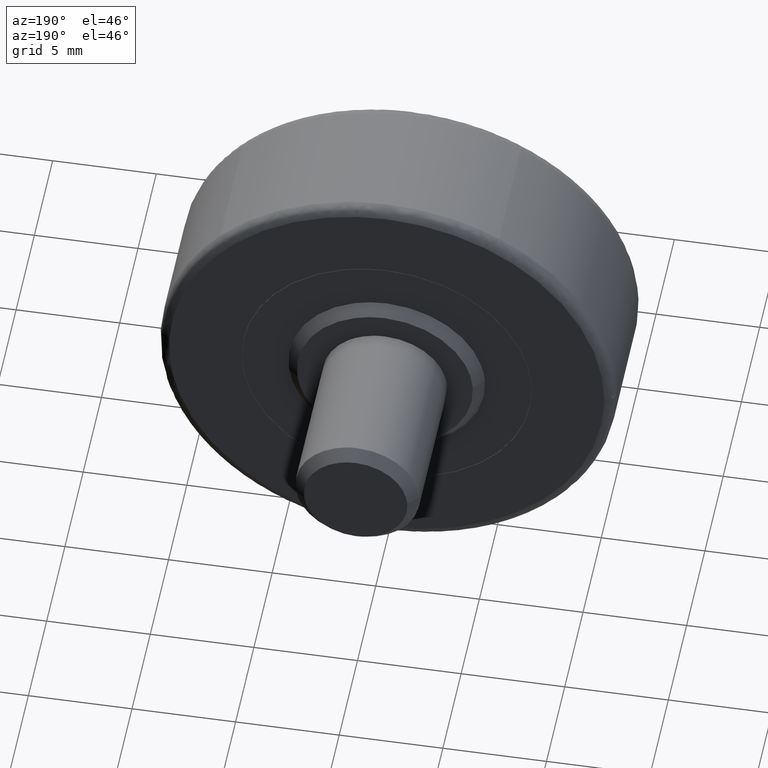
[diagram: clean part render]
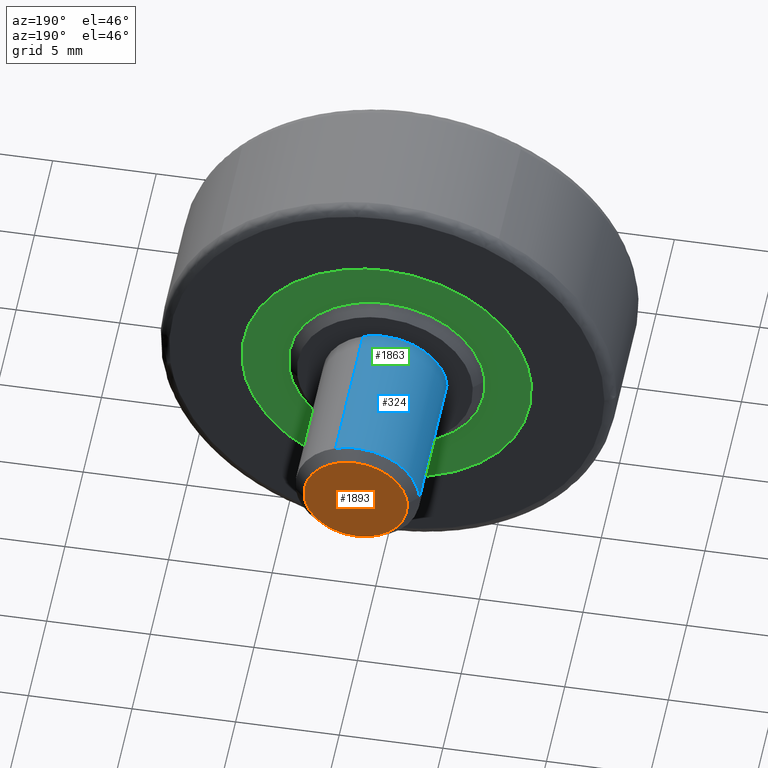
[diagram: same view with three faces highlighted in distinct colors, each labeled with its STEP entity id]
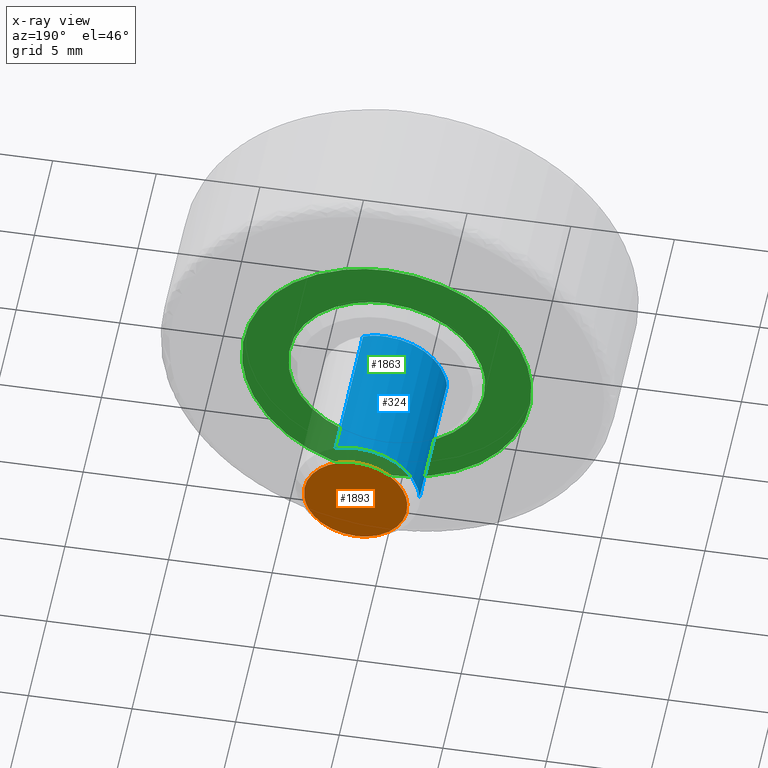
[diagram: x-ray of the same camera — body ghosted, the three highlighted faces saturated]
A machine part, auxiliary view with three faces highlighted in distinct colors.
The next image is the same camera in x-ray (body ghosted, the three faces saturated) — at least one of them is partly hidden behind the body in this view.
Their STEP definitions:

[orange] entity #1893 — the highlighted face is a freeform B-spline surface patch.
#454=CARTESIAN_POINT('',(2.482523815910156,15.499999999984819,-0.295085586762207));
#455=VERTEX_POINT('',#454);
#461=CARTESIAN_POINT('',(0.0,15.500000000000000,2.500000000000000));
#462=VERTEX_POINT('',#461);
#463=CARTESIAN_POINT('',(2.482523815910156,15.499999999984821,-0.295085586762207));
#464=CARTESIAN_POINT('',(2.500000000000000,15.500000000000000,-0.148060299249547));
#465=CARTESIAN_POINT('',(2.500000000000000,15.500000000000000,-2.492082E-016));
#466=CARTESIAN_POINT('',(2.500000000000000,15.500000000000004,2.500000000000000));
#467=CARTESIAN_POINT('',(0.0,15.500000000000000,2.500000000000000));
#475=(BOUNDED_CURVE()B_SPLINE_CURVE(2,(#463,#464,#465,#466,#467),.UNSPECIFIED.,.F.,.U.)B_SPLINE_CURVE_WITH_KNOTS((3,2,3),(0.229562473499508,0.250000000000000,0.500000000000000),.UNSPECIFIED.)CURVE()GEOMETRIC_REPRESENTATION_ITEM()RATIONAL_B_SPLINE_CURVE((0.956026754156257,0.976055948314742,1.0,0.707106781186548,1.0))REPRESENTATION_ITEM(''));
#476=EDGE_CURVE('',#455,#462,#475,.T.);
#478=CARTESIAN_POINT('',(-2.495336996055474,15.499999999998501,0.152621348848425));
#479=VERTEX_POINT('',#478);
#480=CARTESIAN_POINT('',(0.0,15.500000000000000,2.500000000000000));
#481=CARTESIAN_POINT('',(-2.351765167243118,15.500000000000007,2.500000000000000));
#482=CARTESIAN_POINT('',(-2.495336996055474,15.499999999998506,0.152621348848425));
#490=(BOUNDED_CURVE()B_SPLINE_CURVE(2,(#480,#481,#482),.UNSPECIFIED.,.F.,.U.)B_SPLINE_CURVE_WITH_KNOTS((3,3),(0.500000000000000,0.739332962240422),.UNSPECIFIED.)CURVE()GEOMETRIC_REPRESENTATION_ITEM()RATIONAL_B_SPLINE_CURVE((1.0,0.719603993284978,0.976072041669887))REPRESENTATION_ITEM(''));
#491=EDGE_CURVE('',#462,#479,#490,.T.);
#524=CARTESIAN_POINT('',(0.0,15.500000000000000,-2.500000000000000));
#525=VERTEX_POINT('',#524);
#526=CARTESIAN_POINT('',(-2.495336996055474,15.499999999998501,0.152621348848425));
#527=CARTESIAN_POINT('',(-2.500000000000001,15.499999999999998,0.076381908257695));
#528=CARTESIAN_POINT('',(-2.500000000000000,15.500000000000000,-2.492082E-016));
#529=CARTESIAN_POINT('',(-2.500000000000000,15.500000000000004,-2.500000000000000));
#530=CARTESIAN_POINT('',(0.0,15.500000000000000,-2.500000000000000));
#538=(BOUNDED_CURVE()B_SPLINE_CURVE(2,(#526,#527,#528,#529,#530),.UNSPECIFIED.,.F.,.U.)B_SPLINE_CURVE_WITH_KNOTS((3,2,3),(0.739332962240421,0.750000000000000,1.0),.UNSPECIFIED.)CURVE()GEOMETRIC_REPRESENTATION_ITEM()RATIONAL_B_SPLINE_CURVE((0.976072041669885,0.987502787901569,1.0,0.707106781186548,1.0))REPRESENTATION_ITEM(''));
#539=EDGE_CURVE('',#479,#525,#538,.T.);
#541=CARTESIAN_POINT('',(0.0,15.500000000000000,-2.500000000000000));
#542=CARTESIAN_POINT('',(2.220436314664914,15.500000000000004,-2.500000000000001));
#543=CARTESIAN_POINT('',(2.482523815910156,15.499999999984810,-0.295085586762207));
#551=(BOUNDED_CURVE()B_SPLINE_CURVE(2,(#541,#542,#543),.UNSPECIFIED.,.F.,.U.)B_SPLINE_CURVE_WITH_KNOTS((3,3),(0.0,0.229562473499507),.UNSPECIFIED.)CURVE()GEOMETRIC_REPRESENTATION_ITEM()RATIONAL_B_SPLINE_CURVE((1.0,0.731050832871806,0.956026754156257))REPRESENTATION_ITEM(''));
#552=EDGE_CURVE('',#525,#455,#551,.T.);
#1882=CARTESIAN_POINT('',(-2.749689142531143,15.500000000000000,2.749749990309029));
#1883=CARTESIAN_POINT('',(-2.749689142531143,15.500000000000000,-2.749750124419481));
#1884=CARTESIAN_POINT('',(2.749704520529495,15.500000000000000,2.749749990309029));
#1885=CARTESIAN_POINT('',(2.749704520529495,15.500000000000000,-2.749750124419481));
#1886=B_SPLINE_SURFACE_WITH_KNOTS('',1,1,((#1882,#1884),(#1883,#1885)),.UNSPECIFIED.,.F.,.F.,.U.,(2,2),(2,2),(0.0,5.499500114728511),(0.0,5.499393663060637),.UNSPECIFIED.);
#1887=ORIENTED_EDGE('',*,*,#539,.F.);
#1888=ORIENTED_EDGE('',*,*,#491,.F.);
#1889=ORIENTED_EDGE('',*,*,#476,.F.);
#1890=ORIENTED_EDGE('',*,*,#552,.F.);
#1891=EDGE_LOOP('',(#1887,#1888,#1889,#1890));
#1892=FACE_OUTER_BOUND('',#1891,.T.);
#1893=ADVANCED_FACE('',(#1892),#1886,.F.);

[blue] entity #324 — the highlighted face is a freeform B-spline surface patch.
#230=CARTESIAN_POINT('',(1.054853923174716,15.187500000000000,2.808430736329970));
#231=CARTESIAN_POINT('',(0.632968355146225,15.187500000000004,2.966892058095451));
#232=CARTESIAN_POINT('',(0.183145618604571,15.187500000000000,2.994404395265600));
#233=CARTESIAN_POINT('',(-2.811258776661029,15.187499999999998,3.177550013870171));
#234=CARTESIAN_POINT('',(-2.994404395265600,15.187500000000000,0.183145618604571));
#235=CARTESIAN_POINT('',(1.054853923174716,7.307812499999999,2.808430736329970));
#236=CARTESIAN_POINT('',(0.632968355146225,7.307812499999999,2.966892058095451));
#237=CARTESIAN_POINT('',(0.183145618604571,7.307812499999999,2.994404395265600));
#238=CARTESIAN_POINT('',(-2.811258776661029,7.307812500000000,3.177550013870171));
#239=CARTESIAN_POINT('',(-2.994404395265600,7.307812499999999,0.183145618604571));
#247=(BOUNDED_SURFACE()B_SPLINE_SURFACE(2,1,((#230,#235),(#231,#236),(#232,#237),(#233,#238),(#234,#239)),.UNSPECIFIED.,.F.,.F.,.U.)B_SPLINE_SURFACE_WITH_KNOTS((3,2,3),(2,2),(0.0,0.994112549695428,5.964675298172567),(0.0,7.879687500000005),.UNSPECIFIED.)GEOMETRIC_REPRESENTATION_ITEM()RATIONAL_B_SPLINE_SURFACE(((0.906274169979695,0.906274169979695),(0.941421356237309,0.941421356237309),(1.0,1.0),(0.707106781186548,0.707106781186548),(1.0,1.0)))REPRESENTATION_ITEM('')SURFACE());
#248=CARTESIAN_POINT('',(1.054853923180463,15.0,2.808430736327813));
#249=VERTEX_POINT('',#248);
#250=CARTESIAN_POINT('',(0.0,15.0,3.0));
#251=VERTEX_POINT('',#250);
#252=CARTESIAN_POINT('',(1.054853923180463,15.0,2.808430736327812));
#253=CARTESIAN_POINT('',(0.544822158206624,14.999999999999998,3.000000000000000));
#254=CARTESIAN_POINT('',(0.0,15.0,3.0));
#262=(BOUNDED_CURVE()B_SPLINE_CURVE(2,(#252,#253,#254),.UNSPECIFIED.,.F.,.U.)B_SPLINE_CURVE_WITH_KNOTS((3,3),(0.440284170898263,0.500000000000000),.UNSPECIFIED.)CURVE()GEOMETRIC_REPRESENTATION_ITEM()RATIONAL_B_SPLINE_CURVE((0.893499554634975,0.930038554401113,1.0))REPRESENTATION_ITEM(''));
#263=EDGE_CURVE('',#249,#251,#262,.T.);
#264=ORIENTED_EDGE('',*,*,#263,.T.);
#265=CARTESIAN_POINT('',(-2.994404395269201,14.999999999986580,0.183145618655619));
#266=VERTEX_POINT('',#265);
#267=CARTESIAN_POINT('',(0.0,15.0,3.0));
#268=CARTESIAN_POINT('',(-2.822118200525827,14.999999999999996,2.999999999999999));
#269=CARTESIAN_POINT('',(-2.994404395269201,14.999999999986578,0.183145618655619));
#277=(BOUNDED_CURVE()B_SPLINE_CURVE(2,(#267,#268,#269),.UNSPECIFIED.,.F.,.U.)B_SPLINE_CURVE_WITH_KNOTS((3,3),(0.500000000000000,0.739332962230296),.UNSPECIFIED.)CURVE()GEOMETRIC_REPRESENTATION_ITEM()RATIONAL_B_SPLINE_CURVE((1.0,0.719603993296840,0.976072041648187))REPRESENTATION_ITEM(''));
#278=EDGE_CURVE('',#251,#266,#277,.T.);
#279=ORIENTED_EDGE('',*,*,#278,.T.);
#280=CARTESIAN_POINT('',(-2.994404395263733,7.500000000000000,0.183145618635100));
#281=VERTEX_POINT('',#280);
#282=CARTESIAN_POINT('',(-2.994404395269201,14.999999999986580,0.183145618655619));
#283=CARTESIAN_POINT('',(-2.994404395263733,7.500000000000000,0.183145618635100));
#284=QUASI_UNIFORM_CURVE('',1,(#282,#283),.UNSPECIFIED.,.F.,.U.);
#285=EDGE_CURVE('',#266,#281,#284,.T.);
#286=ORIENTED_EDGE('',*,*,#285,.T.);
#287=CARTESIAN_POINT('',(0.0,7.500000000000000,3.0));
#288=VERTEX_POINT('',#287);
#289=CARTESIAN_POINT('',(0.0,7.500000000000000,3.0));
#290=CARTESIAN_POINT('',(-2.822118200659431,7.500000000000000,3.000000000000000));
#291=CARTESIAN_POINT('',(-2.994404395263734,7.500000000000000,0.183145618635100));
#299=(BOUNDED_CURVE()B_SPLINE_CURVE(2,(#289,#290,#291),.UNSPECIFIED.,.F.,.U.)B_SPLINE_CURVE_WITH_KNOTS((3,3),(0.500000000000000,0.739332962238450),.UNSPECIFIED.)CURVE()GEOMETRIC_REPRESENTATION_ITEM()RATIONAL_B_SPLINE_CURVE((1.0,0.719603993287288,0.976072041665661))REPRESENTATION_ITEM(''));
#300=EDGE_CURVE('',#288,#281,#299,.T.);
#301=ORIENTED_EDGE('',*,*,#300,.F.);
#302=CARTESIAN_POINT('',(1.054853931478792,7.500000000000000,2.808430733210939));
#303=VERTEX_POINT('',#302);
#304=CARTESIAN_POINT('',(1.054853931478792,7.500000000000000,2.808430733210940));
#305=CARTESIAN_POINT('',(0.544822167363358,7.499999999999999,3.000000000000000));
#306=CARTESIAN_POINT('',(0.0,7.500000000000000,3.0));
#314=(BOUNDED_CURVE()B_SPLINE_CURVE(2,(#304,#305,#306),.UNSPECIFIED.,.F.,.U.)B_SPLINE_CURVE_WITH_KNOTS((3,3),(0.440284169964845,0.500000000000000),.UNSPECIFIED.)CURVE()GEOMETRIC_REPRESENTATION_ITEM()RATIONAL_B_SPLINE_CURVE((0.893499553492692,0.930038553307545,1.0))REPRESENTATION_ITEM(''));
#315=EDGE_CURVE('',#303,#288,#314,.T.);
#316=ORIENTED_EDGE('',*,*,#315,.F.);
#317=CARTESIAN_POINT('',(1.054853923180463,15.0,2.808430736327813));
#318=CARTESIAN_POINT('',(1.054853931478792,7.500000000000000,2.808430733210939));
#319=QUASI_UNIFORM_CURVE('',1,(#317,#318),.UNSPECIFIED.,.F.,.U.);
#320=EDGE_CURVE('',#249,#303,#319,.T.);
#321=ORIENTED_EDGE('',*,*,#320,.F.);
#322=EDGE_LOOP('',(#264,#279,#286,#301,#316,#321));
#323=FACE_OUTER_BOUND('',#322,.T.);
#324=ADVANCED_FACE('',(#323),#247,.T.);

[green] entity #1863 — the highlighted face is a freeform B-spline surface patch.
#66=CARTESIAN_POINT('',(4.716795250227488,6.999999999999023,-0.560662614627313));
#67=VERTEX_POINT('',#66);
#68=CARTESIAN_POINT('',(0.0,7.0,4.750000000000000));
#69=VERTEX_POINT('',#68);
#70=CARTESIAN_POINT('',(4.716795250227488,6.999999999999023,-0.560662614627314));
#71=CARTESIAN_POINT('',(4.750000000000000,7.0,-0.281314568354248));
#72=CARTESIAN_POINT('',(4.750000000000000,7.0,-2.492082E-016));
#73=CARTESIAN_POINT('',(4.750000000000000,6.999999999999999,4.750000000000000));
#74=CARTESIAN_POINT('',(0.0,7.0,4.750000000000000));
#82=(BOUNDED_CURVE()B_SPLINE_CURVE(2,(#70,#71,#72,#73,#74),.UNSPECIFIED.,.F.,.U.)B_SPLINE_CURVE_WITH_KNOTS((3,2,3),(0.229562473515100,0.250000000000000,0.500000000000000),.UNSPECIFIED.)CURVE()GEOMETRIC_REPRESENTATION_ITEM()RATIONAL_B_SPLINE_CURVE((0.956026754186819,0.976055948333010,1.0,0.707106781186548,1.0))REPRESENTATION_ITEM(''));
#83=EDGE_CURVE('',#67,#69,#82,.T.);
#124=CARTESIAN_POINT('',(-4.741140292506946,6.999999999994289,0.289980562833878));
#125=VERTEX_POINT('',#124);
#131=CARTESIAN_POINT('',(0.0,7.0,4.750000000000000));
#132=CARTESIAN_POINT('',(-4.468353817720905,7.0,4.750000000000000));
#133=CARTESIAN_POINT('',(-4.741140292506947,6.999999999994289,0.289980562833878));
#141=(BOUNDED_CURVE()B_SPLINE_CURVE(2,(#131,#132,#133),.UNSPECIFIED.,.F.,.U.)B_SPLINE_CURVE_WITH_KNOTS((3,3),(0.500000000000000,0.739332962238841),.UNSPECIFIED.)CURVE()GEOMETRIC_REPRESENTATION_ITEM()RATIONAL_B_SPLINE_CURVE((1.0,0.719603993286830,0.976072041666499))REPRESENTATION_ITEM(''));
#142=EDGE_CURVE('',#69,#125,#141,.T.);
#165=CARTESIAN_POINT('',(0.0,7.0,-4.750000000000000));
#166=VERTEX_POINT('',#165);
#167=CARTESIAN_POINT('',(0.0,7.0,-4.750000000000000));
#168=CARTESIAN_POINT('',(4.218828998255311,7.0,-4.750000000000000));
#169=CARTESIAN_POINT('',(4.716795250227488,6.999999999999023,-0.560662614627313));
#177=(BOUNDED_CURVE()B_SPLINE_CURVE(2,(#167,#168,#169),.UNSPECIFIED.,.F.,.U.)B_SPLINE_CURVE_WITH_KNOTS((3,3),(0.0,0.229562473515100),.UNSPECIFIED.)CURVE()GEOMETRIC_REPRESENTATION_ITEM()RATIONAL_B_SPLINE_CURVE((1.0,0.731050832853538,0.956026754186819))REPRESENTATION_ITEM(''));
#178=EDGE_CURVE('',#166,#67,#177,.T.);
#180=CARTESIAN_POINT('',(-4.741140292506947,6.999999999994289,0.289980562833878));
#181=CARTESIAN_POINT('',(-4.750000000000000,7.0,0.145125625711376));
#182=CARTESIAN_POINT('',(-4.750000000000000,7.0,-2.492082E-016));
#183=CARTESIAN_POINT('',(-4.750000000000000,6.999999999999999,-4.750000000000000));
#184=CARTESIAN_POINT('',(0.0,7.0,-4.750000000000000));
#192=(BOUNDED_CURVE()B_SPLINE_CURVE(2,(#180,#181,#182,#183,#184),.UNSPECIFIED.,.F.,.U.)B_SPLINE_CURVE_WITH_KNOTS((3,2,3),(0.739332962238841,0.750000000000000,1.0),.UNSPECIFIED.)CURVE()GEOMETRIC_REPRESENTATION_ITEM()RATIONAL_B_SPLINE_CURVE((0.976072041666500,0.987502787899719,1.0,0.707106781186548,1.0))REPRESENTATION_ITEM(''));
#193=EDGE_CURVE('',#125,#166,#192,.T.);
#758=CARTESIAN_POINT('',(0.0,7.0,6.989999999999999));
#759=VERTEX_POINT('',#758);
#760=CARTESIAN_POINT('',(-6.968452902761408,6.999999999999952,0.548419676805210));
#761=VERTEX_POINT('',#760);
#762=CARTESIAN_POINT('',(0.0,7.0,6.989999999999999));
#763=CARTESIAN_POINT('',(-6.461498281956423,6.999999999999999,6.989999999999999));
#764=CARTESIAN_POINT('',(-6.968452902761408,6.999999999999952,0.548419676805210));
#772=(BOUNDED_CURVE()B_SPLINE_CURVE(2,(#762,#763,#764),.UNSPECIFIED.,.F.,.U.)B_SPLINE_CURVE_WITH_KNOTS((3,3),(0.0,0.236331531930943),.UNSPECIFIED.)CURVE()GEOMETRIC_REPRESENTATION_ITEM()RATIONAL_B_SPLINE_CURVE((1.0,0.723120387622528,0.969723838873964))REPRESENTATION_ITEM(''));
#773=EDGE_CURVE('',#759,#761,#772,.T.);
#814=CARTESIAN_POINT('',(6.968452902761408,6.999999999999952,-0.548419676805209));
#815=VERTEX_POINT('',#814);
#821=CARTESIAN_POINT('',(6.968452902761408,6.999999999999952,-0.548419676805209));
#822=CARTESIAN_POINT('',(6.989999999999998,7.0,-0.274633125001395));
#823=CARTESIAN_POINT('',(6.989999999999999,7.0,0.0));
#824=CARTESIAN_POINT('',(6.990000000000000,6.999999999999999,6.990000000000000));
#825=CARTESIAN_POINT('',(0.0,7.0,6.989999999999999));
#833=(BOUNDED_CURVE()B_SPLINE_CURVE(2,(#821,#822,#823,#824,#825),.UNSPECIFIED.,.F.,.U.)B_SPLINE_CURVE_WITH_KNOTS((3,2,3),(0.736331531930943,0.750000000000000,1.0),.UNSPECIFIED.)CURVE()GEOMETRIC_REPRESENTATION_ITEM()RATIONAL_B_SPLINE_CURVE((0.969723838873964,0.983986393564020,1.0,0.707106781186548,1.0))REPRESENTATION_ITEM(''));
#834=EDGE_CURVE('',#815,#759,#833,.T.);
#857=CARTESIAN_POINT('',(0.0,7.0,-6.989999999999999));
#858=VERTEX_POINT('',#857);
#859=CARTESIAN_POINT('',(-6.968452902761408,6.999999999999952,0.548419676805210));
#860=CARTESIAN_POINT('',(-6.989999999999998,6.999999999999999,0.274633125001396));
#861=CARTESIAN_POINT('',(-6.989999999999999,7.0,0.0));
#862=CARTESIAN_POINT('',(-6.990000000000000,6.999999999999999,-6.990000000000000));
#863=CARTESIAN_POINT('',(0.0,7.0,-6.989999999999999));
#871=(BOUNDED_CURVE()B_SPLINE_CURVE(2,(#859,#860,#861,#862,#863),.UNSPECIFIED.,.F.,.U.)B_SPLINE_CURVE_WITH_KNOTS((3,2,3),(0.236331531930943,0.250000000000000,0.500000000000000),.UNSPECIFIED.)CURVE()GEOMETRIC_REPRESENTATION_ITEM()RATIONAL_B_SPLINE_CURVE((0.969723838873964,0.983986393564020,1.0,0.707106781186548,1.0))REPRESENTATION_ITEM(''));
#872=EDGE_CURVE('',#761,#858,#871,.T.);
#874=CARTESIAN_POINT('',(0.0,7.0,-6.989999999999999));
#875=CARTESIAN_POINT('',(6.461498281956423,6.999999999999999,-6.989999999999999));
#876=CARTESIAN_POINT('',(6.968452902761408,6.999999999999952,-0.548419676805209));
#884=(BOUNDED_CURVE()B_SPLINE_CURVE(2,(#874,#875,#876),.UNSPECIFIED.,.F.,.U.)B_SPLINE_CURVE_WITH_KNOTS((3,3),(0.500000000000000,0.736331531930943),.UNSPECIFIED.)CURVE()GEOMETRIC_REPRESENTATION_ITEM()RATIONAL_B_SPLINE_CURVE((1.0,0.723120387622528,0.969723838873964))REPRESENTATION_ITEM(''));
#885=EDGE_CURVE('',#858,#815,#884,.T.);
#1846=CARTESIAN_POINT('',(-7.686167190326448,7.0,7.688300791723428));
#1847=CARTESIAN_POINT('',(-7.686167190326448,7.0,-7.688300291759667));
#1848=CARTESIAN_POINT('',(7.686167690290206,7.0,7.688300791723428));
#1849=CARTESIAN_POINT('',(7.686167690290206,7.0,-7.688300291759667));
#1850=B_SPLINE_SURFACE_WITH_KNOTS('',1,1,((#1846,#1848),(#1847,#1849)),.UNSPECIFIED.,.F.,.F.,.U.,(2,2),(2,2),(0.0,15.376601083483100),(0.0,15.372334880616650),.UNSPECIFIED.);
#1851=ORIENTED_EDGE('',*,*,#834,.F.);
#1852=ORIENTED_EDGE('',*,*,#885,.F.);
#1853=ORIENTED_EDGE('',*,*,#872,.F.);
#1854=ORIENTED_EDGE('',*,*,#773,.F.);
#1855=EDGE_LOOP('',(#1851,#1852,#1853,#1854));
#1856=FACE_OUTER_BOUND('',#1855,.T.);
#1857=ORIENTED_EDGE('',*,*,#142,.T.);
#1858=ORIENTED_EDGE('',*,*,#193,.T.);
#1859=ORIENTED_EDGE('',*,*,#178,.T.);
#1860=ORIENTED_EDGE('',*,*,#83,.T.);
#1861=EDGE_LOOP('',(#1857,#1858,#1859,#1860));
#1862=FACE_BOUND('',#1861,.T.);
#1863=ADVANCED_FACE('',(#1856,#1862),#1850,.F.);